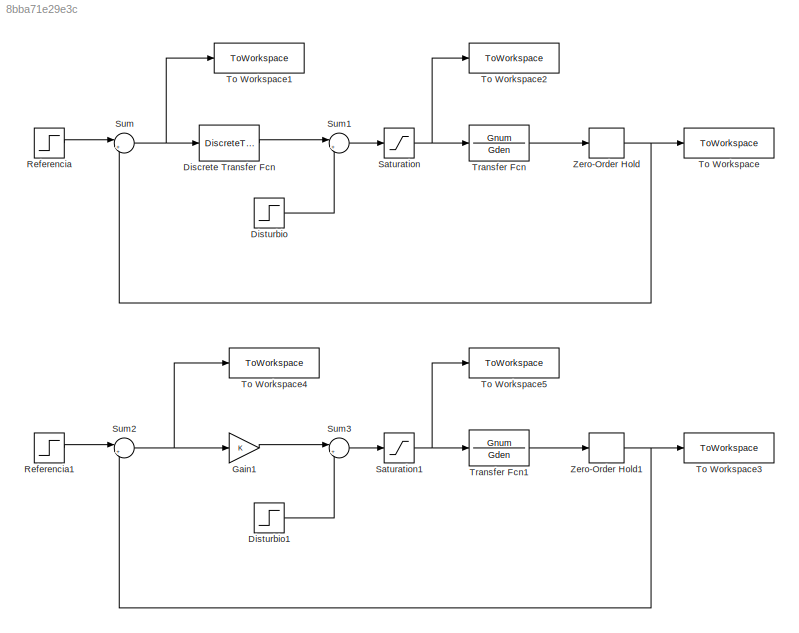
MODEL slx_8bba71e29e3c
KIND model
CONFIG AbsTol = auto
CONFIG EnableMultiTasking = off
CONFIG FixedStep = auto
CONFIG MaxStep = auto
CONFIG MinStep = auto
CONFIG RelTol = 1e-3
CONFIG SampleTimeConstraint = Unconstrained
CONFIG SolverName = VariableStepAuto
CONFIG StartTime = 0.0
CONFIG StopTime = 30
BLOCK [DiscreteTransferFcn] Discrete Transfer Fcn
  Denominator = Gzden
  InputPortMap = u0
  Numerator = Gznum
  SampleTime = T08
BLOCK [Step] Disturbio
  After = d
  SampleTime = 0
  Time = td
BLOCK [Step] Disturbio1
  After = d
  SampleTime = 0
  Time = td
BLOCK [Gain] Gain1
BLOCK [Step] Referencia
  After = R
  SampleTime = 0
  Time = 0
BLOCK [Step] Referencia1
  After = R
  SampleTime = 0
  Time = 0
BLOCK [Saturate] Saturation
  LowerLimit = -10
  UpperLimit = 10
BLOCK [Saturate] Saturation1
  LowerLimit = -10
  UpperLimit = 10
BLOCK [Sum] Sum
  Inputs = |+-
BLOCK [Sum] Sum1
  Inputs = |++
BLOCK [Sum] Sum2
  Inputs = |+-
BLOCK [Sum] Sum3
  Inputs = |++
BLOCK [ToWorkspace] To Workspace
  FixptAsFi = on
  MaxDataPoints = inf
  SampleTime = -1
  SaveFormat = Timeseries
  VariableName = saida_pid
BLOCK [ToWorkspace] To Workspace1
  FixptAsFi = on
  MaxDataPoints = inf
  SampleTime = -1
  SaveFormat = Timeseries
  VariableName = erro_pid
BLOCK [ToWorkspace] To Workspace2
  FixptAsFi = on
  MaxDataPoints = inf
  SampleTime = -1
  SaveFormat = Timeseries
  VariableName = planta_pid
BLOCK [ToWorkspace] To Workspace3
  FixptAsFi = on
  MaxDataPoints = inf
  SampleTime = -1
  SaveFormat = Timeseries
  VariableName = saida_p
BLOCK [ToWorkspace] To Workspace4
  FixptAsFi = on
  MaxDataPoints = inf
  SampleTime = -1
  SaveFormat = Timeseries
  VariableName = erro_p
BLOCK [ToWorkspace] To Workspace5
  FixptAsFi = on
  MaxDataPoints = inf
  SampleTime = -1
  SaveFormat = Timeseries
  VariableName = planta_p
BLOCK [TransferFcn] Transfer Fcn
  Denominator = Gden
  Numerator = Gnum
BLOCK [TransferFcn] Transfer Fcn1
  Denominator = Gden
  Numerator = Gnum
BLOCK [ZeroOrderHold] Zero-Order Hold
  SampleTime = T08
BLOCK [ZeroOrderHold] Zero-Order Hold1
  SampleTime = T08
LINE Discrete Transfer Fcn:1 -> Sum1:1
LINE Disturbio1:1 -> Sum3:2
LINE Disturbio:1 -> Sum1:2
LINE Gain1:1 -> Sum3:1
LINE Referencia1:1 -> Sum2:1
LINE Referencia:1 -> Sum:1
NET Saturation1:1 -> To Workspace5:1, Transfer Fcn1:1
NET Saturation:1 -> To Workspace2:1, Transfer Fcn:1
LINE Sum1:1 -> Saturation:1
NET Sum2:1 -> Gain1:1, To Workspace4:1
LINE Sum3:1 -> Saturation1:1
NET Sum:1 -> Discrete Transfer Fcn:1, To Workspace1:1
LINE Transfer Fcn1:1 -> Zero-Order Hold1:1
LINE Transfer Fcn:1 -> Zero-Order Hold:1
NET Zero-Order Hold1:1 -> Sum2:2, To Workspace3:1
NET Zero-Order Hold:1 -> Sum:2, To Workspace:1
note: NET lines group one-source signal fan-out (src -> all destinations, sorted); 1:1 wires keep LINE
